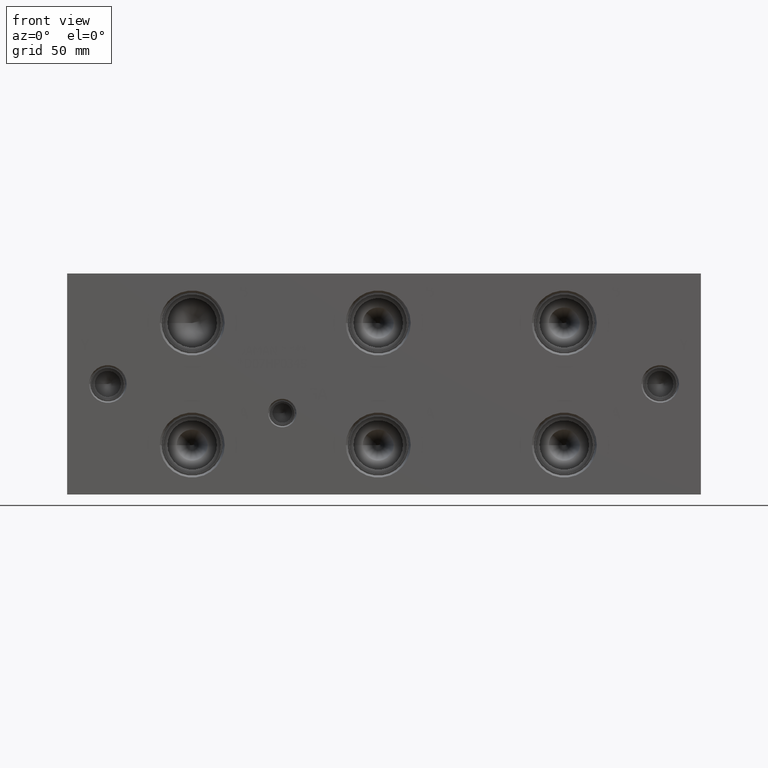
[diagram: clean part render]
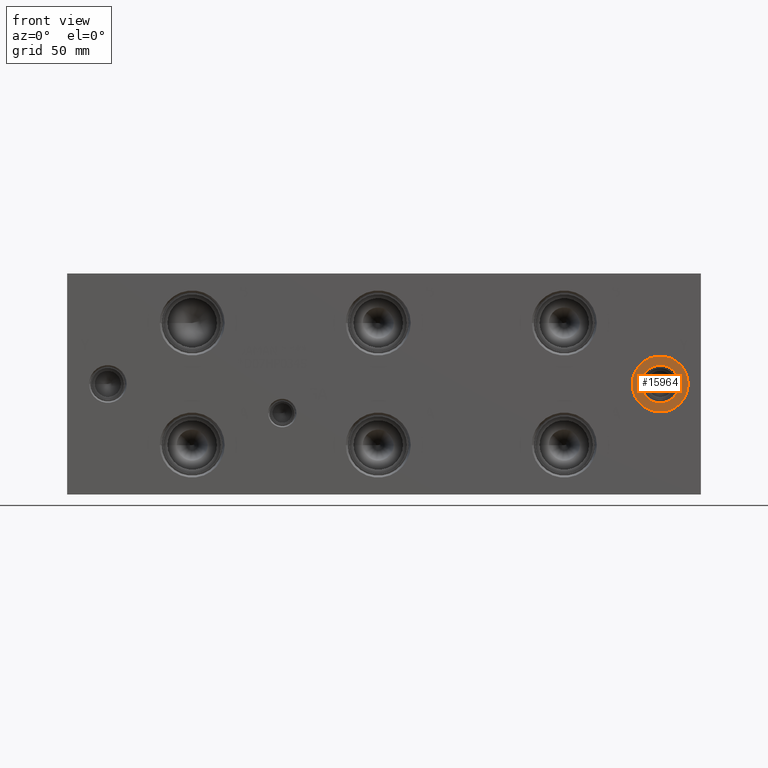
[diagram: same view with one face highlighted and labeled with its STEP entity id]
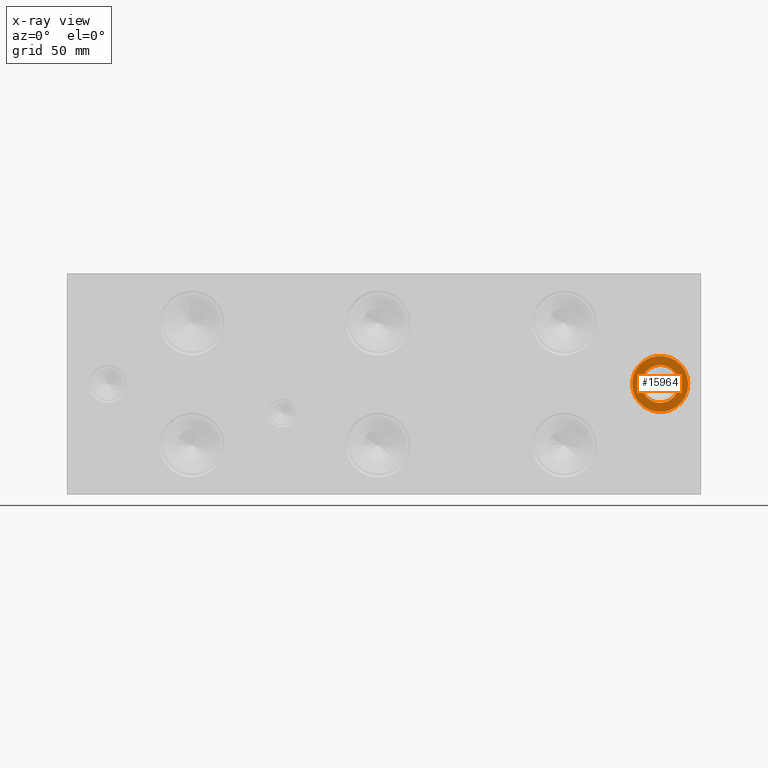
[diagram: x-ray of the same camera — body ghosted, the highlighted face saturated]
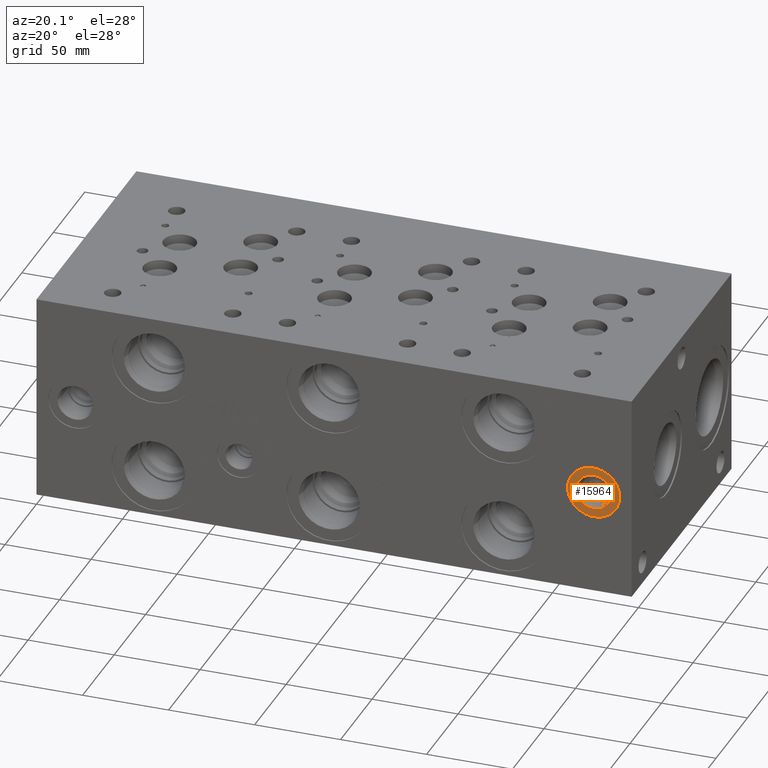
[diagram: same view with one face highlighted and labeled with its STEP entity id]
A machine part, front view. The second image highlights one B-rep face of the part: STEP entity #15964.
The next image is the same camera in x-ray: the body ghosted, the highlighted face saturated — about 0% of this face is hidden behind the body in this view.
A second angle (auxiliary view) of the same face is appended — the face is thin or edge-on in the first view.
In plain terms, the highlighted planar face has unit normal (0, 1, 0).
Its self-contained STEP definition (entity closure, byte-faithful):
#522=CIRCLE('',#16926,15.3162);
#523=CIRCLE('',#16927,15.3162);
#524=CIRCLE('',#16929,10.2997);
#525=CIRCLE('',#16930,10.2997);
#873=FACE_BOUND('',#3042,.T.);
#2098=FACE_OUTER_BOUND('',#3041,.T.);
#3041=EDGE_LOOP('',(#13536,#13537));
#3042=EDGE_LOOP('',(#13538,#13539));
#7323=VERTEX_POINT('',#26963);
#7324=VERTEX_POINT('',#26965);
#7325=VERTEX_POINT('',#26969);
#7326=VERTEX_POINT('',#26970);
#9475=EDGE_CURVE('',#7323,#7324,#522,.T.);
#9476=EDGE_CURVE('',#7324,#7323,#523,.T.);
#9477=EDGE_CURVE('',#7325,#7326,#524,.T.);
#9478=EDGE_CURVE('',#7326,#7325,#525,.T.);
#13536=ORIENTED_EDGE('',*,*,#9476,.F.);
#13537=ORIENTED_EDGE('',*,*,#9475,.F.);
#13538=ORIENTED_EDGE('',*,*,#9477,.T.);
#13539=ORIENTED_EDGE('',*,*,#9478,.T.);
#14717=PLANE('',#16928);
#15964=ADVANCED_FACE('',(#2098,#873),#14717,.F.);
#16926=AXIS2_PLACEMENT_3D('',#26966,#20220,#20221);
#16927=AXIS2_PLACEMENT_3D('',#26967,#20222,#20223);
#16928=AXIS2_PLACEMENT_3D('',#26968,#20224,#20225);
#16929=AXIS2_PLACEMENT_3D('',#26971,#20226,#20227);
#16930=AXIS2_PLACEMENT_3D('',#26972,#20228,#20229);
#20220=DIRECTION('center_axis',(0.,1.,0.));
#20221=DIRECTION('ref_axis',(1.,0.,0.));
#20222=DIRECTION('center_axis',(0.,1.,0.));
#20223=DIRECTION('ref_axis',(1.,0.,0.));
#20224=DIRECTION('center_axis',(0.,1.,0.));
#20225=DIRECTION('ref_axis',(0.,0.,1.));
#20226=DIRECTION('center_axis',(0.,1.,0.));
#20227=DIRECTION('ref_axis',(1.,0.,0.));
#20228=DIRECTION('center_axis',(0.,1.,0.));
#20229=DIRECTION('ref_axis',(1.,0.,0.));
#26963=CARTESIAN_POINT('',(308.5338,0.7874,60.325));
#26965=CARTESIAN_POINT('',(339.1662,0.7874,60.325));
#26966=CARTESIAN_POINT('Origin',(323.85,0.7874,60.325));
#26967=CARTESIAN_POINT('Origin',(323.85,0.7874,60.325));
#26968=CARTESIAN_POINT('Origin',(334.1497,0.7874,60.325));
#26969=CARTESIAN_POINT('',(334.1497,0.7874,60.325));
#26970=CARTESIAN_POINT('',(313.5503,0.78739999999999,60.325));
#26971=CARTESIAN_POINT('Origin',(323.85,0.7874,60.325));
#26972=CARTESIAN_POINT('Origin',(323.85,0.7874,60.325));